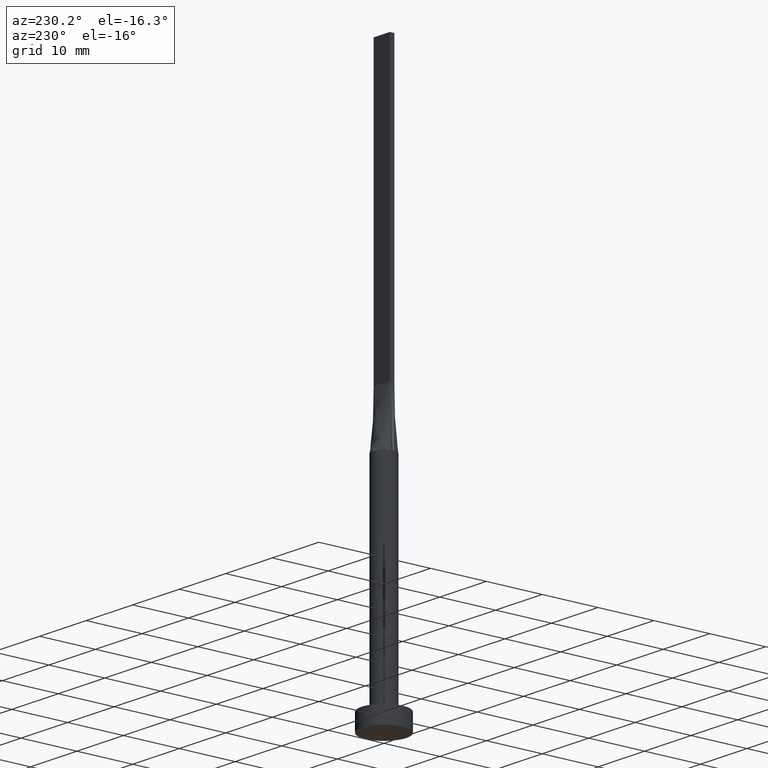
[diagram: clean part render]
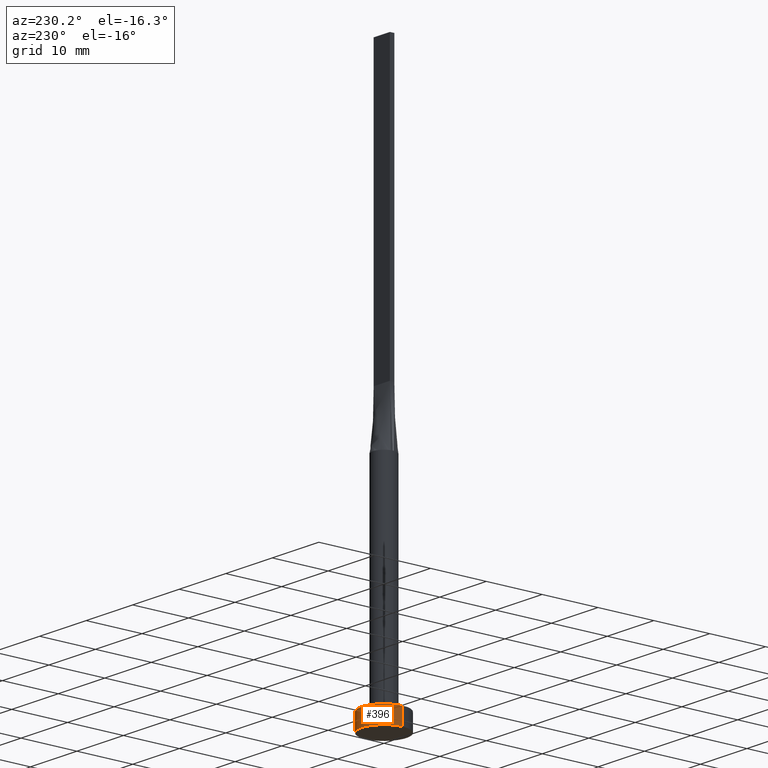
[diagram: same view with one face highlighted and labeled with its STEP entity id]
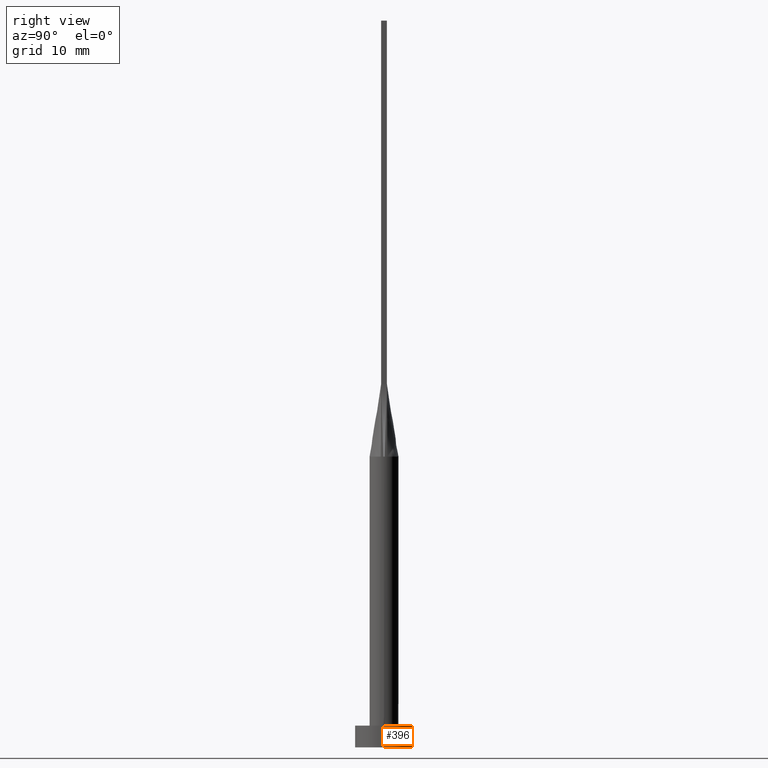
[diagram: same view with one face highlighted and labeled with its STEP entity id]
A machine part, auxiliary view. The second image highlights one B-rep face of the part: STEP entity #396.
A second angle (right view) of the same face is appended — the face is thin or edge-on in the first view.
In plain terms, the highlighted cylindrical surface (edge-blend (fillet) strip) has radius 4 mm, axis along (-0, -0, -1).
Its self-contained STEP definition (entity closure, byte-faithful):
#6 = CARTESIAN_POINT ( 'NONE',  ( 4.000000000000000000, 4.898587196589412829E-16, 0.000000000000000000 ) ) ;
#10 = AXIS2_PLACEMENT_3D ( 'NONE', #153, #330, #568 ) ;
#41 = CIRCLE ( 'NONE', #442, 4.000000000000000000 ) ;
#65 = DIRECTION ( 'NONE',  ( 1.000000000000000000, 0.000000000000000000, 0.000000000000000000 ) ) ;
#67 = VERTEX_POINT ( 'NONE', #392 ) ;
#76 = CARTESIAN_POINT ( 'NONE',  ( 0.000000000000000000, 0.000000000000000000, 3.000000000000000000 ) ) ;
#79 = VERTEX_POINT ( 'NONE', #336 ) ;
#80 = VECTOR ( 'NONE', #543, 1000.000000000000000 ) ;
#101 = VERTEX_POINT ( 'NONE', #487 ) ;
#113 = CARTESIAN_POINT ( 'NONE',  ( -4.000000000000000000, 0.000000000000000000, 3.000000000000000000 ) ) ;
#139 = EDGE_CURVE ( 'NONE', #494, #101, #41, .T. ) ;
#153 = CARTESIAN_POINT ( 'NONE',  ( 0.000000000000000000, 0.000000000000000000, 3.000000000000000000 ) ) ;
#165 = FACE_OUTER_BOUND ( 'NONE', #400, .T. ) ;
#217 = EDGE_CURVE ( 'NONE', #67, #494, #286, .T. ) ;
#226 = EDGE_CURVE ( 'NONE', #67, #79, #367, .T. ) ;
#238 = LINE ( 'NONE', #113, #271 ) ;
#260 = ORIENTED_EDGE ( 'NONE', *, *, #217, .T. ) ;
#263 = DIRECTION ( 'NONE',  ( -1.000000000000000000, 0.000000000000000000, 0.000000000000000000 ) ) ;
#271 = VECTOR ( 'NONE', #325, 1000.000000000000000 ) ;
#286 = LINE ( 'NONE', #371, #80 ) ;
#310 = CARTESIAN_POINT ( 'NONE',  ( 0.000000000000000000, 0.000000000000000000, 0.000000000000000000 ) ) ;
#311 = AXIS2_PLACEMENT_3D ( 'NONE', #76, #430, #263 ) ;
#325 = DIRECTION ( 'NONE',  ( -0.000000000000000000, -0.000000000000000000, -1.000000000000000000 ) ) ;
#330 = DIRECTION ( 'NONE',  ( 0.000000000000000000, 0.000000000000000000, 1.000000000000000000 ) ) ;
#336 = CARTESIAN_POINT ( 'NONE',  ( -4.000000000000000000, 0.000000000000000000, 3.000000000000000000 ) ) ;
#356 = ORIENTED_EDGE ( 'NONE', *, *, #139, .T. ) ;
#367 = CIRCLE ( 'NONE', #10, 4.000000000000000000 ) ;
#371 = CARTESIAN_POINT ( 'NONE',  ( 4.000000000000000000, 4.898587196589412829E-16, 3.000000000000000000 ) ) ;
#383 = CYLINDRICAL_SURFACE ( 'NONE', #311, 4.000000000000000000 ) ;
#392 = CARTESIAN_POINT ( 'NONE',  ( 4.000000000000000000, 4.898587196589412829E-16, 3.000000000000000000 ) ) ;
#396 = ADVANCED_FACE ( 'NONE', ( #165 ), #383, .T. ) ;
#400 = EDGE_LOOP ( 'NONE', ( #424, #260, #356, #534 ) ) ;
#424 = ORIENTED_EDGE ( 'NONE', *, *, #226, .F. ) ;
#430 = DIRECTION ( 'NONE',  ( -0.000000000000000000, -0.000000000000000000, -1.000000000000000000 ) ) ;
#442 = AXIS2_PLACEMENT_3D ( 'NONE', #310, #547, #65 ) ;
#451 = EDGE_CURVE ( 'NONE', #79, #101, #238, .T. ) ;
#487 = CARTESIAN_POINT ( 'NONE',  ( -4.000000000000000000, 0.000000000000000000, 0.000000000000000000 ) ) ;
#494 = VERTEX_POINT ( 'NONE', #6 ) ;
#534 = ORIENTED_EDGE ( 'NONE', *, *, #451, .F. ) ;
#543 = DIRECTION ( 'NONE',  ( -0.000000000000000000, -0.000000000000000000, -1.000000000000000000 ) ) ;
#547 = DIRECTION ( 'NONE',  ( 0.000000000000000000, 0.000000000000000000, 1.000000000000000000 ) ) ;
#568 = DIRECTION ( 'NONE',  ( 1.000000000000000000, 0.000000000000000000, 0.000000000000000000 ) ) ;